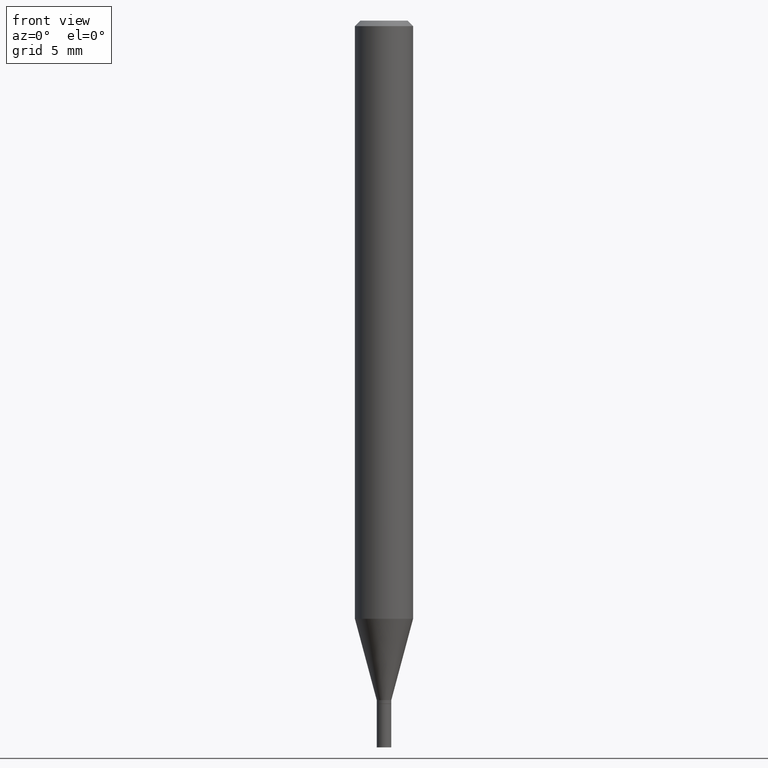
[diagram: clean part render]
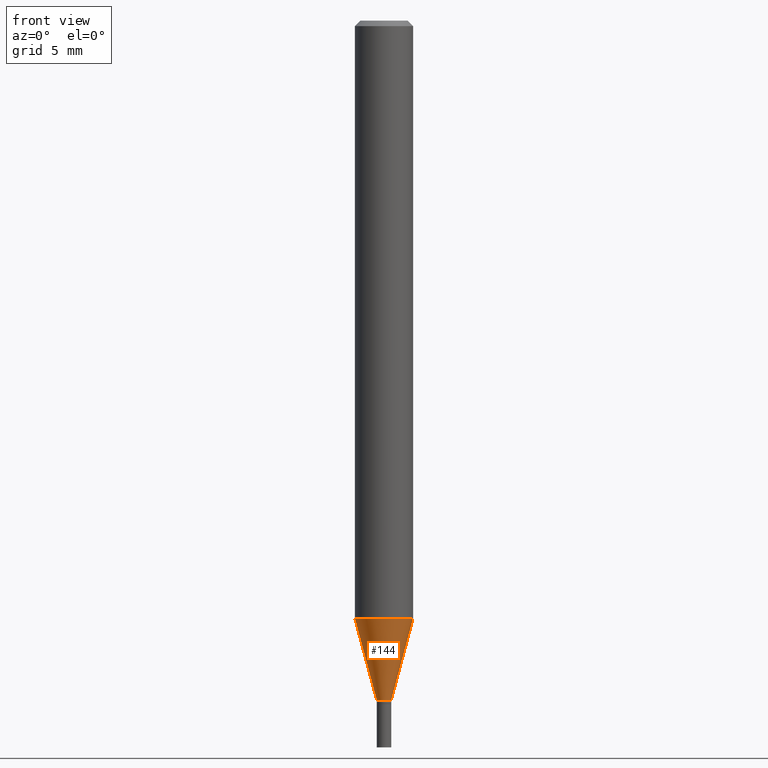
[diagram: same view with one face highlighted and labeled with its STEP entity id]
A machine part, front view. The second image highlights one B-rep face of the part: STEP entity #144.
In plain terms, the highlighted conical surface has half-angle 15 deg.
Its self-contained STEP definition (entity closure, byte-faithful):
#4 = VERTEX_POINT ( 'NONE', #363 ) ;
#7 = VERTEX_POINT ( 'NONE', #188 ) ;
#27 = AXIS2_PLACEMENT_3D ( 'NONE', #303, #232, #442 ) ;
#32 = EDGE_LOOP ( 'NONE', ( #216, #87, #259, #215 ) ) ;
#60 = AXIS2_PLACEMENT_3D ( 'NONE', #205, #177, #327 ) ;
#71 = CARTESIAN_POINT ( 'NONE',  ( 0.01969999999999991896, -6.563635768891228653E-15, -1.840500000000000025 ) ) ;
#85 = LINE ( 'NONE', #447, #90 ) ;
#87 = ORIENTED_EDGE ( 'NONE', *, *, #394, .T. ) ;
#90 = VECTOR ( 'NONE', #263, 39.37007874015748143 ) ;
#108 = AXIS2_PLACEMENT_3D ( 'NONE', #279, #460, #316 ) ;
#144 = ADVANCED_FACE ( 'NONE', ( #151 ), #320, .T. ) ;
#151 = FACE_OUTER_BOUND ( 'NONE', #32, .T. ) ;
#177 = DIRECTION ( 'NONE',  ( -2.445468806185136597E-29, 3.491481338843145583E-15, 1.000000000000000000 ) ) ;
#188 = CARTESIAN_POINT ( 'NONE',  ( -0.01969999999999991896, -5.691584603187028865E-15, -1.840500000000000025 ) ) ;
#202 = DIRECTION ( 'NONE',  ( 0.2588190451025214611, 1.565188264969620982E-15, 0.9659258262890679791 ) ) ;
#205 = CARTESIAN_POINT ( 'NONE',  ( 4.500885337783744072E-29, -6.426071404140809439E-15, -1.840500000000000025 ) ) ;
#215 = ORIENTED_EDGE ( 'NONE', *, *, #368, .F. ) ;
#216 = ORIENTED_EDGE ( 'NONE', *, *, #252, .F. ) ;
#232 = DIRECTION ( 'NONE',  ( -2.445468806185136597E-29, 3.491481338843145583E-15, 1.000000000000000000 ) ) ;
#249 = VECTOR ( 'NONE', #202, 39.37007874015748143 ) ;
#252 = EDGE_CURVE ( 'NONE', #7, #4, #85, .T. ) ;
#257 = CIRCLE ( 'NONE', #108, 0.07875000000000000056 ) ;
#259 = ORIENTED_EDGE ( 'NONE', *, *, #271, .T. ) ;
#263 = DIRECTION ( 'NONE',  ( -0.2588190451025214611, 5.211531920934550253E-15, 0.9659258262890679791 ) ) ;
#271 = EDGE_CURVE ( 'NONE', #436, #321, #306, .T. ) ;
#272 = CIRCLE ( 'NONE', #60, 0.01969999999999991896 ) ;
#279 = CARTESIAN_POINT ( 'NONE',  ( 3.961958790944637830E-29, -5.656627125589065612E-15, -1.620122399813058056 ) ) ;
#303 = CARTESIAN_POINT ( 'NONE',  ( 4.500885337783744072E-29, -6.426071404140809439E-15, -1.840500000000000025 ) ) ;
#306 = LINE ( 'NONE', #445, #249 ) ;
#316 = DIRECTION ( 'NONE',  ( 1.000000000000000000, -6.982962677686261977E-15, 0.000000000000000000 ) ) ;
#320 = CONICAL_SURFACE ( 'NONE', #27, 0.01969999999999991896, 0.2617993877991501850 ) ;
#321 = VERTEX_POINT ( 'NONE', #356 ) ;
#327 = DIRECTION ( 'NONE',  ( 1.000000000000000000, -6.982962677686258033E-15, 0.000000000000000000 ) ) ;
#356 = CARTESIAN_POINT ( 'NONE',  ( 0.07874999999999997280, -6.206535436456859747E-15, -1.620122399813058056 ) ) ;
#363 = CARTESIAN_POINT ( 'NONE',  ( -0.07874999999999997280, -5.097074721177987599E-15, -1.620122399813058056 ) ) ;
#368 = EDGE_CURVE ( 'NONE', #4, #321, #257, .T. ) ;
#394 = EDGE_CURVE ( 'NONE', #7, #436, #272, .T. ) ;
#436 = VERTEX_POINT ( 'NONE', #71 ) ;
#442 = DIRECTION ( 'NONE',  ( 1.000000000000000000, -6.982962677686258033E-15, 0.000000000000000000 ) ) ;
#445 = CARTESIAN_POINT ( 'NONE',  ( 0.01969999999999991896, -6.563635768891228653E-15, -1.840500000000000025 ) ) ;
#447 = CARTESIAN_POINT ( 'NONE',  ( -0.01969999999999991896, -6.286094485196070130E-15, -1.840500000000000025 ) ) ;
#460 = DIRECTION ( 'NONE',  ( -2.445468806185136597E-29, 3.491481338843145583E-15, 1.000000000000000000 ) ) ;